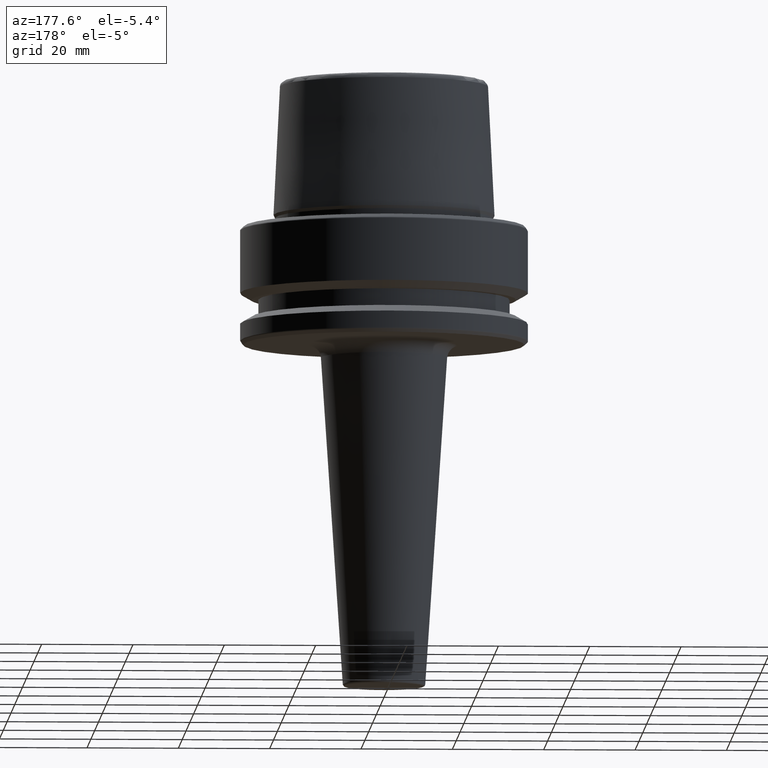
[diagram: clean part render]
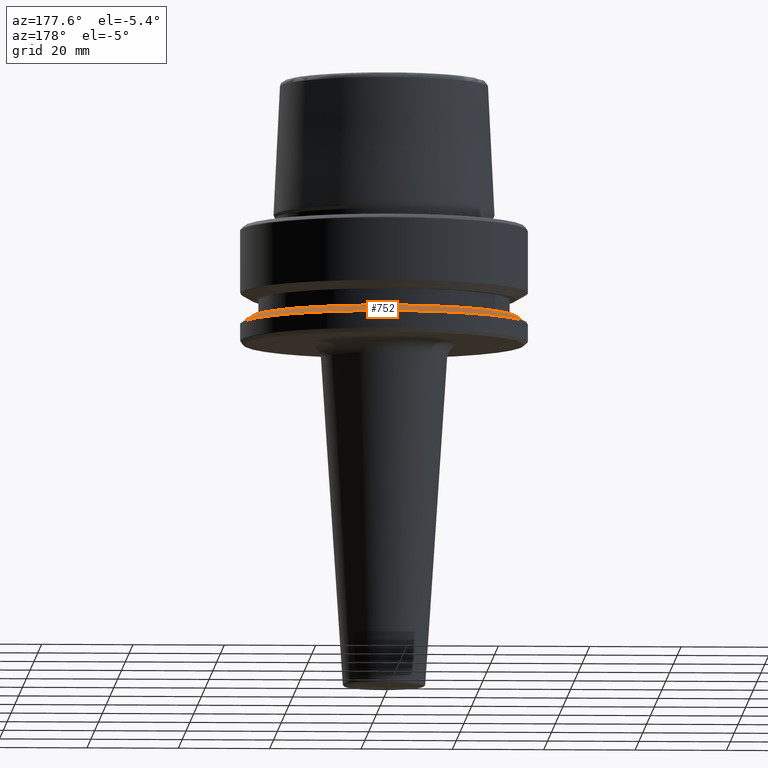
[diagram: same view with one face highlighted and labeled with its STEP entity id]
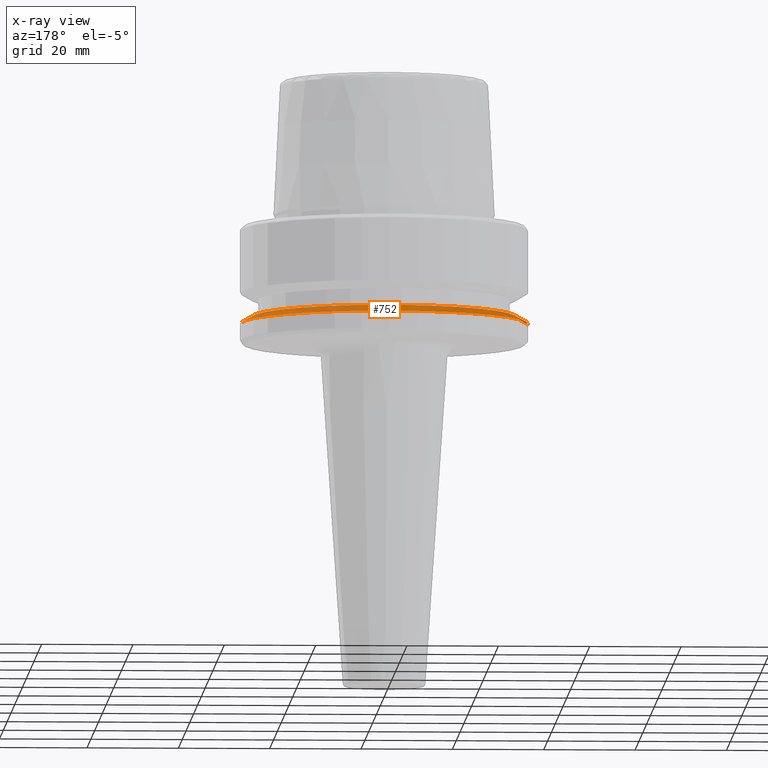
[diagram: x-ray of the same camera — body ghosted, the highlighted face saturated]
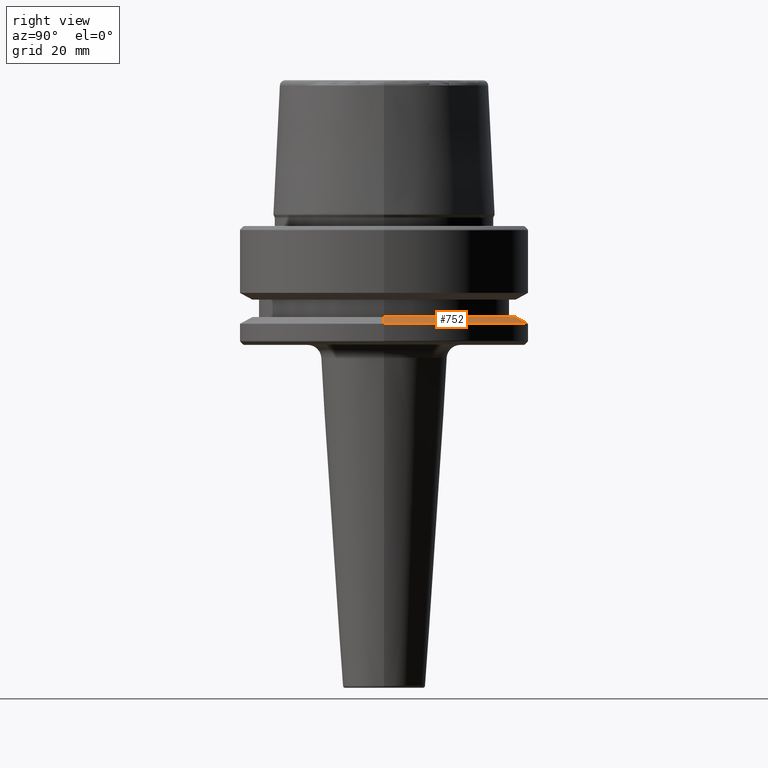
[diagram: same view with one face highlighted and labeled with its STEP entity id]
A machine part, auxiliary view. The second image highlights one B-rep face of the part: STEP entity #752.
The next image is the same camera in x-ray: the body ghosted, the highlighted face saturated — about 0% of this face is hidden behind the body in this view.
A second angle (right view) of the same face is appended — the face is thin or edge-on in the first view.
In plain terms, the highlighted conical surface has half-angle 60 deg.
Its self-contained STEP definition (entity closure, byte-faithful):
#74 = CARTESIAN_POINT ( 'NONE',  ( 0.0000000000000000000, 0.0000000000000000000, -21.37749907475931700 ) ) ;
#97 = VERTEX_POINT ( 'NONE', #351 ) ;
#121 = DIRECTION ( 'NONE',  ( -0.8660254037844410400, 0.0000000000000000000, -0.4999999999999958400 ) ) ;
#136 = CONICAL_SURFACE ( 'NONE', #730, 31.50000000000000000, 1.047197551196602500 ) ;
#140 = EDGE_LOOP ( 'NONE', ( #801, #142, #427, #167 ) ) ;
#142 = ORIENTED_EDGE ( 'NONE', *, *, #1094, .T. ) ;
#167 = ORIENTED_EDGE ( 'NONE', *, *, #278, .F. ) ;
#168 = DIRECTION ( 'NONE',  ( 1.000000000000000000, 0.0000000000000000000, 0.0000000000000000000 ) ) ;
#216 = CARTESIAN_POINT ( 'NONE',  ( -31.50000000000000000, 0.0000000000000000000, -21.37749907475931700 ) ) ;
#278 = EDGE_CURVE ( 'NONE', #943, #1157, #514, .T. ) ;
#346 = CARTESIAN_POINT ( 'NONE',  ( 31.50000000000000000, 3.857637417314162700E-015, -21.37749907475931700 ) ) ;
#351 = CARTESIAN_POINT ( 'NONE',  ( 31.50000000000000000, 0.0000000000000000000, -21.37749907475931700 ) ) ;
#363 = CARTESIAN_POINT ( 'NONE',  ( 0.0000000000000000000, 0.0000000000000000000, -19.90000000000001600 ) ) ;
#393 = DIRECTION ( 'NONE',  ( -1.000000000000000000, 0.0000000000000000000, 0.0000000000000000000 ) ) ;
#424 = FACE_OUTER_BOUND ( 'NONE', #140, .T. ) ;
#427 = ORIENTED_EDGE ( 'NONE', *, *, #1033, .T. ) ;
#450 = CIRCLE ( 'NONE', #1086, 28.94089653438085100 ) ;
#464 = DIRECTION ( 'NONE',  ( 1.000000000000000000, 0.0000000000000000000, 0.0000000000000000000 ) ) ;
#468 = CARTESIAN_POINT ( 'NONE',  ( -28.94089653438085100, 0.0000000000000000000, -19.90000000000001600 ) ) ;
#477 = VERTEX_POINT ( 'NONE', #871 ) ;
#514 = LINE ( 'NONE', #216, #776 ) ;
#607 = EDGE_CURVE ( 'NONE', #477, #943, #450, .T. ) ;
#730 = AXIS2_PLACEMENT_3D ( 'NONE', #998, #1091, #393 ) ;
#752 = ADVANCED_FACE ( 'NONE', ( #424 ), #136, .T. ) ;
#756 = DIRECTION ( 'NONE',  ( -0.0000000000000000000, -0.0000000000000000000, 1.000000000000000000 ) ) ;
#776 = VECTOR ( 'NONE', #121, 1000.000000000000100 ) ;
#801 = ORIENTED_EDGE ( 'NONE', *, *, #607, .F. ) ;
#871 = CARTESIAN_POINT ( 'NONE',  ( 28.94089653438085100, 3.700937523921292900E-015, -19.90000000000001600 ) ) ;
#892 = CARTESIAN_POINT ( 'NONE',  ( -31.50000000000000000, 3.857637417314162700E-015, -21.37749907475931700 ) ) ;
#943 = VERTEX_POINT ( 'NONE', #468 ) ;
#967 = VECTOR ( 'NONE', #1231, 1000.000000000000100 ) ;
#998 = CARTESIAN_POINT ( 'NONE',  ( 0.0000000000000000000, 0.0000000000000000000, -21.37749907475931700 ) ) ;
#1033 = EDGE_CURVE ( 'NONE', #97, #1157, #1064, .T. ) ;
#1039 = AXIS2_PLACEMENT_3D ( 'NONE', #74, #756, #168 ) ;
#1055 = DIRECTION ( 'NONE',  ( -0.0000000000000000000, -0.0000000000000000000, 1.000000000000000000 ) ) ;
#1064 = CIRCLE ( 'NONE', #1039, 31.50000000000000000 ) ;
#1086 = AXIS2_PLACEMENT_3D ( 'NONE', #363, #1055, #464 ) ;
#1091 = DIRECTION ( 'NONE',  ( 0.0000000000000000000, 0.0000000000000000000, -1.000000000000000000 ) ) ;
#1094 = EDGE_CURVE ( 'NONE', #477, #97, #1224, .T. ) ;
#1157 = VERTEX_POINT ( 'NONE', #892 ) ;
#1224 = LINE ( 'NONE', #346, #967 ) ;
#1231 = DIRECTION ( 'NONE',  ( 0.8660254037844410400, 1.060575238724909700E-016, -0.4999999999999958400 ) ) ;